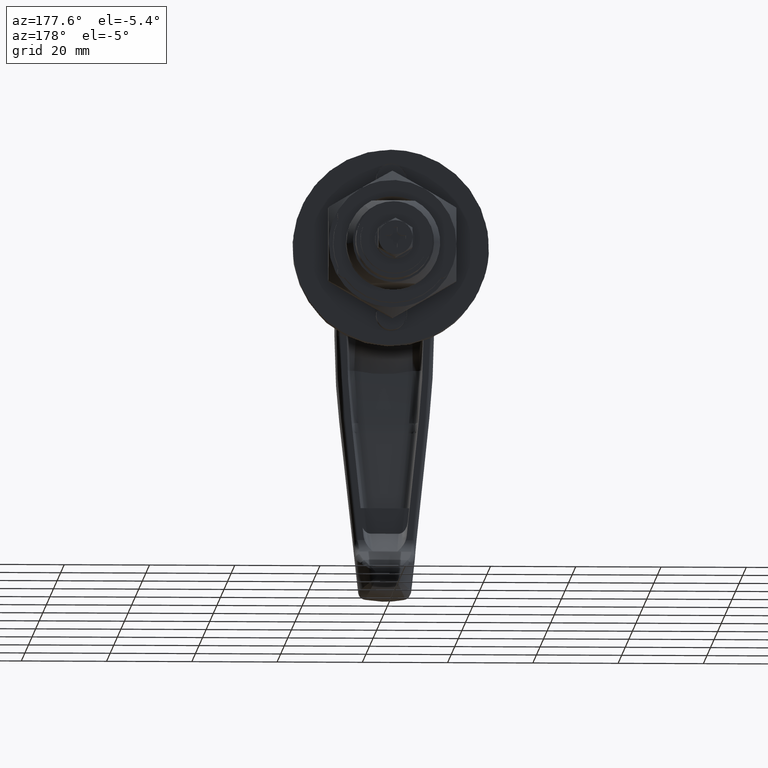
[diagram: clean part render]
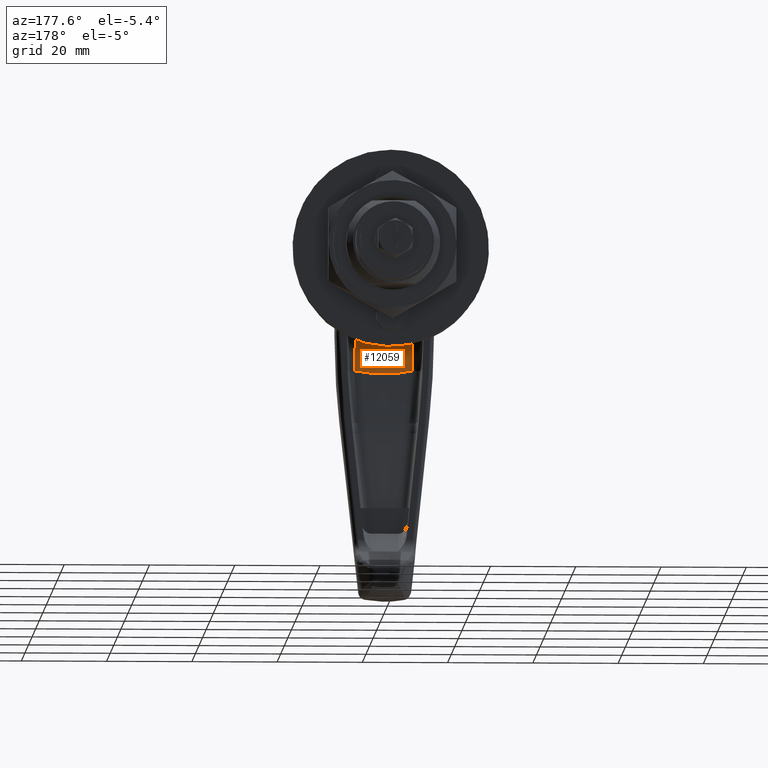
[diagram: same view with one face highlighted and labeled with its STEP entity id]
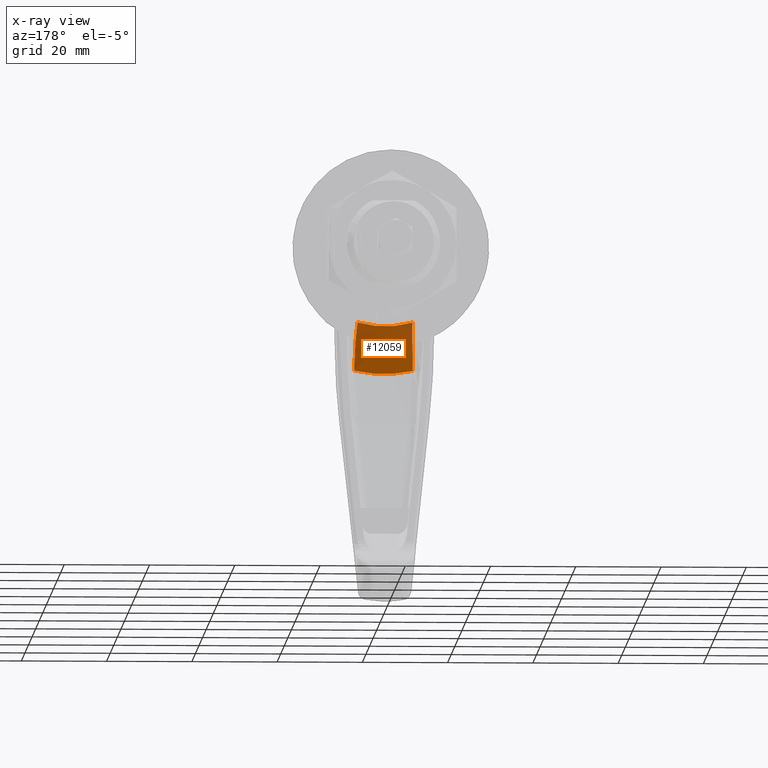
[diagram: x-ray of the same camera — body ghosted, the highlighted face saturated]
A machine part, auxiliary view. The second image highlights one B-rep face of the part: STEP entity #12059.
The next image is the same camera in x-ray: the body ghosted, the highlighted face saturated — about 40% of this face is hidden behind the body in this view.
In plain terms, the highlighted face is a freeform B-spline surface patch.
Its self-contained STEP definition (entity closure, byte-faithful):
#10975=CARTESIAN_POINT('',(-41.331410608772551,-6.833117843114151,-25.158700089596849));
#10976=VERTEX_POINT('',#10975);
#11160=CARTESIAN_POINT('',(-32.624235852724198,-6.433495325306279,-14.618483568802700));
#11161=VERTEX_POINT('',#11160);
#11215=CARTESIAN_POINT('',(-41.331410608772551,-6.833117843114151,-25.158700089596849));
#11216=CARTESIAN_POINT('',(-41.344437320498642,-6.830736559522276,-24.843627912378210));
#11217=CARTESIAN_POINT('',(-41.343150942378053,-6.827536288449375,-24.529108881847641));
#11218=CARTESIAN_POINT('',(-41.319946570548552,-6.821500695562965,-24.058152743711869));
#11219=CARTESIAN_POINT('',(-41.308660244404308,-6.819282961446394,-23.901304649979711));
#11220=CARTESIAN_POINT('',(-41.278948238834367,-6.814434606204669,-23.587884424686550));
#11221=CARTESIAN_POINT('',(-41.260481793164693,-6.811799447633585,-23.431094477819709));
#11222=CARTESIAN_POINT('',(-41.150964881409180,-6.797693621314110,-22.653309397588639));
#11223=CARTESIAN_POINT('',(-41.008620412292323,-6.783385546120276,-22.047106271068060));
#11224=CARTESIAN_POINT('',(-40.714934918352903,-6.757973598080122,-21.161261969502021));
#11225=CARTESIAN_POINT('',(-40.603593532893299,-6.748844865069924,-20.869915287126119));
#11226=CARTESIAN_POINT('',(-40.415872420999030,-6.734245950292391,-20.438952483648091));
#11227=CARTESIAN_POINT('',(-40.349726717609933,-6.729220271645673,-20.296077647988181));
#11228=CARTESIAN_POINT('',(-40.210876346267369,-6.718920342978663,-20.013440586932660));
#11229=CARTESIAN_POINT('',(-40.138459205787633,-6.713667078663932,-19.874234710332800));
#11230=CARTESIAN_POINT('',(-39.761652121178912,-6.686951856127981,-19.188597632771039));
#11231=CARTESIAN_POINT('',(-39.413472366038278,-6.664135746115305,-18.673079928954419));
#11232=CARTESIAN_POINT('',(-38.821064343300890,-6.629101490231898,-17.949257432667238));
#11233=CARTESIAN_POINT('',(-38.611782849686627,-6.617287048386616,-17.716225688392239));
#11234=CARTESIAN_POINT('',(-38.168952194395487,-6.593659232782077,-17.267607553203160));
#11235=CARTESIAN_POINT('',(-37.938733756124513,-6.582025033957097,-17.055388059273469));
#11236=CARTESIAN_POINT('',(-37.222358738865779,-6.548052896743576,-16.454027607801262));
#11237=CARTESIAN_POINT('',(-36.710703735560678,-6.526635808174040,-16.099881089196941));
#11238=CARTESIAN_POINT('',(-36.027448742640253,-6.502786992378750,-15.717075328106050));
#11239=CARTESIAN_POINT('',(-35.888538600703157,-6.498162289297878,-15.643504041289900));
#11240=CARTESIAN_POINT('',(-35.606444364485512,-6.489252212853669,-15.502652793399790));
#11241=CARTESIAN_POINT('',(-35.464275484698263,-6.484998829866181,-15.435876392930460));
#11242=CARTESIAN_POINT('',(-35.034464003723890,-6.472876106223533,-15.246295499516650));
#11243=CARTESIAN_POINT('',(-34.452583472425083,-6.458412423894069,-15.022136261256080));
#11244=CARTESIAN_POINT('',(-33.853388321256467,-6.447691286235353,-14.854263794628091));
#11245=CARTESIAN_POINT('',(-33.245449674593239,-6.439014902616786,-14.714805120221889));
#11246=CARTESIAN_POINT('',(-32.937109508238017,-6.435698894858096,-14.659279737870481));
#11247=CARTESIAN_POINT('',(-32.624235852724198,-6.433495325306279,-14.618483568802700));
#11248=B_SPLINE_CURVE_WITH_KNOTS('',3,(#11215,#11216,#11217,#11218,#11219,#11220,#11221,#11222,#11223,#11224,#11225,#11226,#11227,#11228,#11229,#11230,#11231,#11232,#11233,#11234,#11235,#11236,#11237,#11238,#11239,#11240,#11241,#11242,#11243,#11244,#11245,#11246,#11247),.UNSPECIFIED.,.F.,.U.,(4,2,2,2,2,2,2,2,2,2,2,2,2,2,1,2,4),(0.0,0.062499999999999,0.093749999999999,0.124999999999998,0.249999999999997,0.312499999999995,0.343749999999995,0.374999999999995,0.499999999999994,0.562499999999994,0.624999999999995,0.749999999999996,0.781249999999997,0.812499999999997,0.874999999999998,0.937499999999999,1.0),.UNSPECIFIED.);
#11249=EDGE_CURVE('',#10976,#11161,#11248,.T.);
#11531=CARTESIAN_POINT('',(-41.331410608772551,6.833117843114120,-25.158700089596898));
#11532=VERTEX_POINT('',#11531);
#11765=CARTESIAN_POINT('',(-32.624235852724198,6.433495325306420,-14.618483568802640));
#11766=VERTEX_POINT('',#11765);
#11782=CARTESIAN_POINT('',(-32.624235852724198,6.433495325306420,-14.618483568802640));
#11783=CARTESIAN_POINT('',(-32.937428188865461,6.435701139326097,-14.659321291221261));
#11784=CARTESIAN_POINT('',(-33.247879266977847,6.439034845787660,-14.715155473655230));
#11785=CARTESIAN_POINT('',(-33.709453808735752,6.445644670286466,-14.821352437800780));
#11786=CARTESIAN_POINT('',(-33.862057671010390,6.448108411262711,-14.860374146742879));
#11787=CARTESIAN_POINT('',(-34.164026713257947,6.453515277188435,-14.945314387128590));
#11788=CARTESIAN_POINT('',(-34.313519102042207,6.456460211608783,-14.991262042625380));
#11789=CARTESIAN_POINT('',(-35.053645182782297,6.472319632604084,-15.238100459579501));
#11790=CARTESIAN_POINT('',(-35.622460551502030,6.488633925399269,-15.489848886510231));
#11791=CARTESIAN_POINT('',(-36.304421629457202,6.512458995300268,-15.872336931417070));
#11792=CARTESIAN_POINT('',(-36.439349119151473,6.517395830864997,-15.952252319030629));
#11793=CARTESIAN_POINT('',(-36.706227335730823,6.527586051931690,-16.119031106092510));
#11794=CARTESIAN_POINT('',(-36.838250219854842,6.532843769740564,-16.205974128998349));
#11795=CARTESIAN_POINT('',(-37.225505217866043,6.548867096783742,-16.474348027740330));
#11796=CARTESIAN_POINT('',(-37.473432336145457,6.559936923347285,-16.664195638397029));
#11797=CARTESIAN_POINT('',(-38.187511459677033,6.593869222096575,-17.265459582928312));
#11798=CARTESIAN_POINT('',(-38.624209279524557,6.617449749369936,-17.708332055386851));
#11799=CARTESIAN_POINT('',(-39.120380465612293,6.646805201433242,-18.315073250870459));
#11800=CARTESIAN_POINT('',(-39.217260149754779,6.652680069941344,-18.439304448269660));
#11801=CARTESIAN_POINT('',(-39.405244979539383,6.664345027855224,-18.692323415274949));
#11802=CARTESIAN_POINT('',(-39.495928127012398,6.670108347593432,-18.820521840263851));
#11803=CARTESIAN_POINT('',(-39.758276521960440,6.687151406012671,-19.210069839121420));
#11804=CARTESIAN_POINT('',(-39.920261565370083,6.698183650599243,-19.476361537011758));
#11805=CARTESIAN_POINT('',(-40.368477813271092,6.730002953756598,-20.294515330643272));
#11806=CARTESIAN_POINT('',(-40.617289701010023,6.749510430170228,-20.865493356002681));
#11807=CARTESIAN_POINT('',(-40.864252456883939,6.770897337986799,-21.611967117377699));
#11808=CARTESIAN_POINT('',(-40.910463512908628,6.775030080595093,-21.763143851421230));
#11809=CARTESIAN_POINT('',(-40.995473212267576,6.782897185740714,-22.065736412114379));
#11810=CARTESIAN_POINT('',(-41.034398502590967,6.786642121378530,-22.217499244317150));
#11811=CARTESIAN_POINT('',(-41.140629739422899,6.797304247450475,-22.674162402209529));
#11812=CARTESIAN_POINT('',(-41.197413089780810,6.803648652126656,-22.980434538848030));
#11813=CARTESIAN_POINT('',(-41.326362361575860,6.820341706701933,-23.904649797178731));
#11814=CARTESIAN_POINT('',(-41.357489285763698,6.828350659582686,-24.527944937310622));
#11815=CARTESIAN_POINT('',(-41.331410608772551,6.833117843114120,-25.158700089596898));
#11816=B_SPLINE_CURVE_WITH_KNOTS('',3,(#11782,#11783,#11784,#11785,#11786,#11787,#11788,#11789,#11790,#11791,#11792,#11793,#11794,#11795,#11796,#11797,#11798,#11799,#11800,#11801,#11802,#11803,#11804,#11805,#11806,#11807,#11808,#11809,#11810,#11811,#11812,#11813,#11814,#11815),.UNSPECIFIED.,.F.,.U.,(4,2,2,2,2,2,2,2,2,2,2,2,2,2,2,2,4),(0.0,0.062500000000001,0.093750000000001,0.125000000000002,0.250000000000003,0.281250000000004,0.312500000000004,0.375000000000005,0.500000000000005,0.531250000000006,0.562500000000006,0.625000000000005,0.750000000000005,0.781250000000005,0.812500000000005,0.875000000000003,1.0),.UNSPECIFIED.);
#11817=EDGE_CURVE('',#11766,#11532,#11816,.T.);
#11952=CARTESIAN_POINT('',(-32.558716694895793,-6.506755815289179,-14.587857107402353));
#11953=CARTESIAN_POINT('',(-32.541388229541610,-5.453305891834897,-14.903077217187217));
#11954=CARTESIAN_POINT('',(-32.526815640925292,-4.384443431157517,-15.139737898747594));
#11955=CARTESIAN_POINT('',(-32.511790179384690,-2.758330254594236,-15.378483404052114));
#11956=CARTESIAN_POINT('',(-32.507905612945144,-2.212469860268576,-15.438613355967680));
#11957=CARTESIAN_POINT('',(-32.502666373594309,-1.112949554672852,-15.519274928350830));
#11958=CARTESIAN_POINT('',(-32.501313262481119,-0.557242167377693,-15.539787304808595));
#11959=CARTESIAN_POINT('',(-32.501301247709080,1.106984785368259,-15.539970355229439));
#11960=CARTESIAN_POINT('',(-32.506700545044481,2.203948501455963,-15.459307952869612));
#11961=CARTESIAN_POINT('',(-32.526684942892814,4.373815309322004,-15.141861945344198));
#11962=CARTESIAN_POINT('',(-32.541279299167257,5.446739798293869,-14.905068490725990));
#11963=CARTESIAN_POINT('',(-32.558724886519904,6.507253787374848,-14.587708094735527));
#11964=CARTESIAN_POINT('',(-32.592043129660290,-6.507624317719468,-14.592015299344254));
#11965=CARTESIAN_POINT('',(-32.574766510833555,-5.454007684368777,-14.907273793277799));
#11966=CARTESIAN_POINT('',(-32.560234941288172,-4.384994750253185,-15.143956795274365));
#11967=CARTESIAN_POINT('',(-32.545251190117533,-2.758668999709934,-15.382723297778858));
#11968=CARTESIAN_POINT('',(-32.541377252138503,-2.212739895742206,-15.442858096975131));
#11969=CARTESIAN_POINT('',(-32.536152296730798,-1.113084007813592,-15.523526041369479));
#11970=CARTESIAN_POINT('',(-32.534802846180007,-0.557309474338609,-15.544039946534527));
#11971=CARTESIAN_POINT('',(-32.534790863978500,1.107118493339889,-15.544223010859120));
#11972=CARTESIAN_POINT('',(-32.540175643915667,2.204214949637336,-15.463554929792309));
#11973=CARTESIAN_POINT('',(-32.560104610623732,4.374365165662915,-15.146081041736943));
#11974=CARTESIAN_POINT('',(-32.574657904423653,5.447440557215346,-14.909265307893698));
#11975=CARTESIAN_POINT('',(-32.592051296708242,6.508122368690325,-14.591866268510612));
#11976=CARTESIAN_POINT('',(-41.689726913843600,-6.744714199441696,-15.727147685051227));
#11977=CARTESIAN_POINT('',(-41.698599791890693,-5.645840152344120,-16.054392791613346));
#11978=CARTESIAN_POINT('',(-41.704745624944962,-4.535851988606155,-16.298371877078868));
#11979=CARTESIAN_POINT('',(-41.710851940071784,-2.851457663844647,-16.544110006383498));
#11980=CARTESIAN_POINT('',(-41.712358780965872,-2.286727617900139,-16.605885732077411));
#11981=CARTESIAN_POINT('',(-41.714371675087513,-1.149936520936407,-16.688721569303116));
#11982=CARTESIAN_POINT('',(-41.714877241513598,-0.575759477004953,-16.709762631289781));
#11983=CARTESIAN_POINT('',(-41.714881771501631,1.143770192324767,-16.709950469925690));
#11984=CARTESIAN_POINT('',(-41.712918225609009,2.277226252412227,-16.627298350305452));
#11985=CARTESIAN_POINT('',(-41.704800877808864,4.524823550489247,-16.300561551365853));
#11986=CARTESIAN_POINT('',(-41.698655997751629,5.638992091929097,-16.056459791969619));
#11987=CARTESIAN_POINT('',(-41.689722719415947,6.745233637723814,-15.726992989642410));
#11988=CARTESIAN_POINT('',(-41.357349307927521,-9.380726420544974,-24.505179278162828));
#11989=CARTESIAN_POINT('',(-41.339108562490793,-7.862204478815181,-24.984845629767634));
#11990=CARTESIAN_POINT('',(-41.323768047991628,-6.321301414857593,-25.345087981320773));
#11991=CARTESIAN_POINT('',(-41.307950664122941,-3.976913942710064,-25.708526869728498));
#11992=CARTESIAN_POINT('',(-41.303861316681044,-3.189916975207961,-25.800069503110219));
#11993=CARTESIAN_POINT('',(-41.298345861573971,-1.604652503897684,-25.922871911378706));
#11994=CARTESIAN_POINT('',(-41.296921407678383,-0.803432656891761,-25.954102400496915));
#11995=CARTESIAN_POINT('',(-41.296908759417740,1.596052449683500,-25.954381093685527));
#11996=CARTESIAN_POINT('',(-41.302592738971491,3.177655679066638,-25.831564922850696));
#11997=CARTESIAN_POINT('',(-41.323630462726172,6.305979377219850,-25.348321160047309));
#11998=CARTESIAN_POINT('',(-41.338993893821304,7.852739804577761,-24.987875638471746));
#11999=CARTESIAN_POINT('',(-41.357357930780331,9.381444240257354,-24.504952525807237));
#12000=CARTESIAN_POINT('',(-41.356131188433977,-9.390387052954225,-24.537349590507706));
#12001=CARTESIAN_POINT('',(-41.337792807437410,-7.870316478007928,-25.017531513288120));
#12002=CARTESIAN_POINT('',(-41.322375095149553,-6.327829481082676,-25.378165122000148));
#12003=CARTESIAN_POINT('',(-41.306479107840076,-3.981024558280420,-25.741998978204958));
#12004=CARTESIAN_POINT('',(-41.302369722631290,-3.193214894996750,-25.833641289972984));
#12005=CARTESIAN_POINT('',(-41.296827328573087,-1.606312259623741,-25.956577420927154));
#12006=CARTESIAN_POINT('',(-41.295395971460174,-0.804263608122473,-25.987841971895513));
#12007=CARTESIAN_POINT('',(-41.295383261763419,1.597703167559373,-25.988120968806935));
#12008=CARTESIAN_POINT('',(-41.301094602868233,3.180943229746376,-25.865170546935513));
#12009=CARTESIAN_POINT('',(-41.322236817781267,6.312491684355428,-25.381401808341149));
#12010=CARTESIAN_POINT('',(-41.337677524361247,7.860842159119349,-25.020564773432003));
#12011=CARTESIAN_POINT('',(-41.356139857503571,9.391105605710775,-24.537122594060786));
#12019=(BOUNDED_SURFACE()B_SPLINE_SURFACE(3,2,((#11952,#11964,#11976,#11988,#12000),(#11953,#11965,#11977,#11989,#12001),(#11954,#11966,#11978,#11990,#12002),(#11955,#11967,#11979,#11991,#12003),(#11956,#11968,#11980,#11992,#12004),(#11957,#11969,#11981,#11993,#12005),(#11958,#11970,#11982,#11994,#12006),(#11959,#11971,#11983,#11995,#12007),(#11960,#11972,#11984,#11996,#12008),(#11961,#11973,#11985,#11997,#12009),(#11962,#11974,#11986,#11998,#12010),(#11963,#11975,#11987,#11999,#12011)),.UNSPECIFIED.,.F.,.F.,.U.)B_SPLINE_SURFACE_WITH_KNOTS((4,2,2,2,2,4),(3,1,1,3),(0.0,4.804878699713643,7.207318049570469,9.609757399427293,14.414636099140941,19.219514798854590),(0.0,0.078125989956278,15.703228802625860,15.781391076173090),.UNSPECIFIED.)GEOMETRIC_REPRESENTATION_ITEM()RATIONAL_B_SPLINE_SURFACE(((1.002617798166189,1.001308899083094,0.738221777974244,1.001309506967346,1.002619013934691),(1.002627433555634,1.001313716777817,0.737258244898906,1.001314326899522,1.002628653799044),(1.002635008915958,1.001317504457979,0.736500713481026,1.001318116338773,1.002636232677547),(1.002642728159557,1.001321364079779,0.735728793823094,1.001321977753075,1.002643955506150),(1.002644694819737,1.001322347409869,0.735532129003053,1.001322961539847,1.002645923079694),(1.002647339382656,1.001323669691328,0.735267674322113,1.001324284435406,1.002648568870811),(1.002648016569967,1.001324008284984,0.735199956003447,1.001324623186312,1.002649246372625),(1.002648022599582,1.001324011299791,0.735199353045661,1.001324626202520,1.002649252405040),(1.002645342095391,1.001322671047696,0.735467401831962,1.001323285327979,1.002646570655958),(1.002635076923518,1.001317538461759,0.736493912766386,1.001318150358346,1.002636300716692),(1.002627494725747,1.001313747362874,0.737252127924870,1.001314357498783,1.002628714997566),(1.002617793613012,1.001308896806506,0.738222233289158,1.001309504689700,1.002619009379400)))REPRESENTATION_ITEM('')SURFACE());
#12020=CARTESIAN_POINT('',(-32.624235852724233,6.433495325306424,-14.618483568802670));
#12021=CARTESIAN_POINT('',(-32.607213140593082,5.383572378563560,-14.928677304422591));
#12022=CARTESIAN_POINT('',(-32.593007670250060,4.321500568797993,-15.160137847859909));
#12023=CARTESIAN_POINT('',(-32.573578021962852,2.173741006973291,-15.470217001306240));
#12024=CARTESIAN_POINT('',(-32.568346178751099,1.088053853953791,-15.548839051129560));
#12025=CARTESIAN_POINT('',(-32.568381143274443,-0.147099800122615,-15.548303352561801));
#12026=CARTESIAN_POINT('',(-32.568466326490281,-0.284654372123998,-15.546998642206800));
#12027=CARTESIAN_POINT('',(-32.568799297656831,-0.559563507745784,-15.541893694826591));
#12028=CARTESIAN_POINT('',(-32.569541459167652,-0.971127089231110,-15.530509170272399));
#12029=CARTESIAN_POINT('',(-32.571000896456283,-1.380315374301790,-15.508059935244420));
#12030=CARTESIAN_POINT('',(-32.574838157364667,-2.195578336992318,-15.448656321974561));
#12031=CARTESIAN_POINT('',(-32.578623945438977,-2.734939657408528,-15.389733317390920));
#12032=CARTESIAN_POINT('',(-32.593246605684641,-4.340849698764976,-15.156232641093171));
#12033=CARTESIAN_POINT('',(-32.607403066111168,-5.395286561242807,-14.925216416081890));
#12034=CARTESIAN_POINT('',(-32.624235852724247,-6.433495325306283,-14.618483568802720));
#12035=B_SPLINE_CURVE_WITH_KNOTS('',3,(#12020,#12021,#12022,#12023,#12024,#12025,#12026,#12027,#12028,#12029,#12030,#12031,#12032,#12033,#12034),.UNSPECIFIED.,.F.,.U.,(4,2,2,2,1,2,2,4),(0.0,0.250000000000000,0.500000000000000,0.531250000000000,0.562500000000000,0.625000000000000,0.750000000000000,1.0),.UNSPECIFIED.);
#12036=EDGE_CURVE('',#11766,#11161,#12035,.T.);
#12037=ORIENTED_EDGE('',*,*,#12036,.T.);
#12038=ORIENTED_EDGE('',*,*,#11249,.F.);
#12039=CARTESIAN_POINT('',(-41.331410608772622,-6.833117843114154,-25.158700089596881));
#12040=CARTESIAN_POINT('',(-41.320956297679267,-5.711885553797370,-25.411554580182369));
#12041=CARTESIAN_POINT('',(-41.312641066072601,-4.580985701848914,-25.601622652069530));
#12042=CARTESIAN_POINT('',(-41.304193455918778,-2.870133284616360,-25.792570948745691));
#12043=CARTESIAN_POINT('',(-41.302044269217333,-2.297426991028753,-25.840495072414100));
#12044=CARTESIAN_POINT('',(-41.299885877360524,-1.434687564978290,-25.888491956732931));
#12045=CARTESIAN_POINT('',(-41.299343727903029,-1.146494094833699,-25.900507207864770));
#12046=CARTESIAN_POINT('',(-41.298621922426278,-0.568867932657851,-25.916493230523489));
#12047=CARTESIAN_POINT('',(-41.298442782608952,-0.279265833371388,-25.920452654730610));
#12048=CARTESIAN_POINT('',(-41.298462593230980,1.164119047119625,-25.920014488248960));
#12049=CARTESIAN_POINT('',(-41.301416861641549,2.309973466934810,-25.855343667242369));
#12050=CARTESIAN_POINT('',(-41.312669075640208,4.584475317793309,-25.600978393364059));
#12051=CARTESIAN_POINT('',(-41.320967822784603,5.713121629529483,-25.411275826794181));
#12052=CARTESIAN_POINT('',(-41.331410608772629,6.833117843114118,-25.158700089596881));
#12053=B_SPLINE_CURVE_WITH_KNOTS('',3,(#12039,#12040,#12041,#12042,#12043,#12044,#12045,#12046,#12047,#12048,#12049,#12050,#12051,#12052),.UNSPECIFIED.,.F.,.U.,(4,2,2,2,2,2,4),(0.0,0.250000000000000,0.375000000000000,0.437500000000000,0.500000000000000,0.750000000000000,1.0),.UNSPECIFIED.);
#12054=EDGE_CURVE('',#10976,#11532,#12053,.T.);
#12055=ORIENTED_EDGE('',*,*,#12054,.T.);
#12056=ORIENTED_EDGE('',*,*,#11817,.F.);
#12057=EDGE_LOOP('',(#12037,#12038,#12055,#12056));
#12058=FACE_OUTER_BOUND('',#12057,.T.);
#12059=ADVANCED_FACE('',(#12058),#12019,.F.);